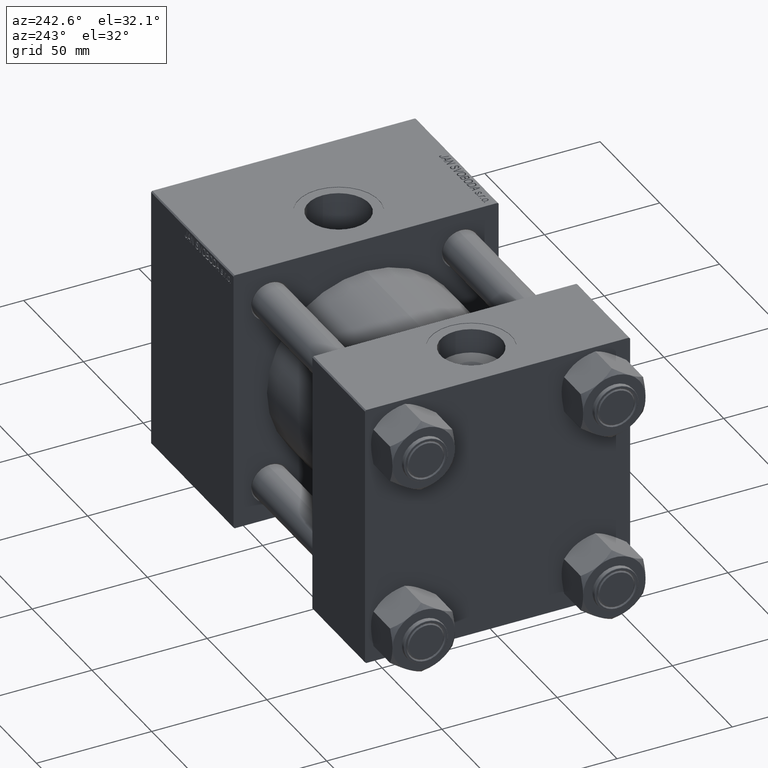
[diagram: clean part render]
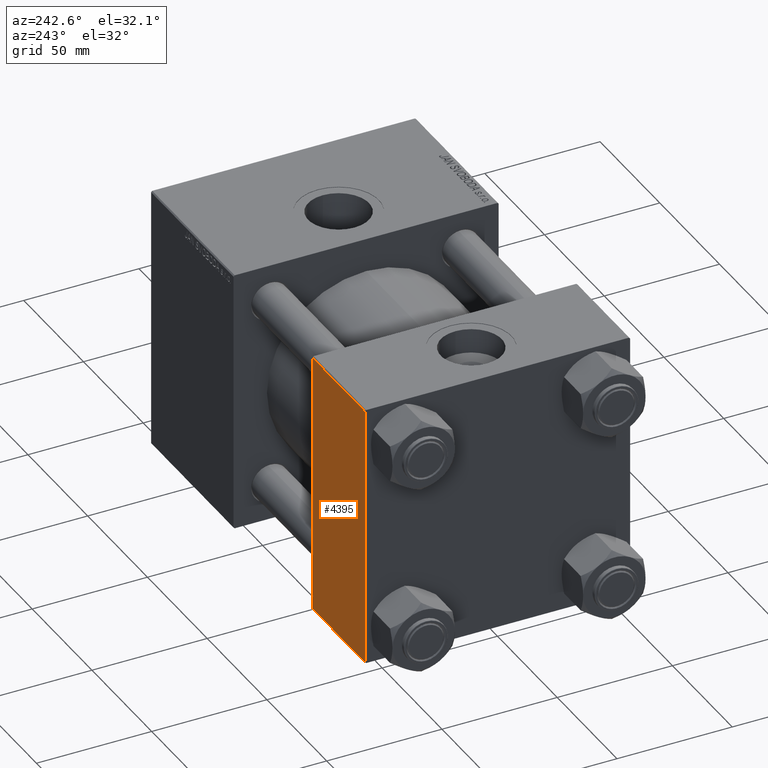
[diagram: same view with one face highlighted and labeled with its STEP entity id]
A machine part, auxiliary view. The second image highlights one B-rep face of the part: STEP entity #4395.
In plain terms, the highlighted planar face has unit normal (0, 1, 0).
Its self-contained STEP definition (entity closure, byte-faithful):
#1265 = VERTEX_POINT ( 'NONE', #42312 ) ;
#2132 = EDGE_CURVE ( 'NONE', #17488, #13222, #47960, .T. ) ;
#3208 = VERTEX_POINT ( 'NONE', #23993 ) ;
#4395 = ADVANCED_FACE ( 'NONE', ( #42175 ), #34241, .T. ) ;
#6760 = LINE ( 'NONE', #41585, #27524 ) ;
#7146 = LINE ( 'NONE', #11247, #35573 ) ;
#10234 = ORIENTED_EDGE ( 'NONE', *, *, #2132, .T. ) ;
#11247 = CARTESIAN_POINT ( 'NONE',  ( 44.00000000000000000, 57.49999999999999289, 57.50000000000000711 ) ) ;
#12166 = DIRECTION ( 'NONE',  ( -0.000000000000000000, 1.000000000000000000, 0.000000000000000000 ) ) ;
#13222 = VERTEX_POINT ( 'NONE', #15253 ) ;
#15253 = CARTESIAN_POINT ( 'NONE',  ( 0.000000000000000000, 57.49999999999999289, -57.00000000000000711 ) ) ;
#17488 = VERTEX_POINT ( 'NONE', #47164 ) ;
#19598 = EDGE_CURVE ( 'NONE', #1265, #3208, #43140, .T. ) ;
#23689 = CARTESIAN_POINT ( 'NONE',  ( 44.00000000000000000, 57.49999999999999289, 57.00000000000003553 ) ) ;
#23993 = CARTESIAN_POINT ( 'NONE',  ( 44.00000000000000000, 57.49999999999999289, 57.00000000000003553 ) ) ;
#25011 = EDGE_LOOP ( 'NONE', ( #30403, #10234, #31666, #45266 ) ) ;
#25818 = EDGE_CURVE ( 'NONE', #1265, #13222, #6760, .T. ) ;
#26301 = DIRECTION ( 'NONE',  ( 0.000000000000000000, -0.000000000000000000, 1.000000000000000000 ) ) ;
#27524 = VECTOR ( 'NONE', #45683, 1000.000000000000000 ) ;
#28137 = EDGE_CURVE ( 'NONE', #3208, #17488, #7146, .T. ) ;
#29888 = VECTOR ( 'NONE', #39540, 1000.000000000000000 ) ;
#30403 = ORIENTED_EDGE ( 'NONE', *, *, #28137, .T. ) ;
#31666 = ORIENTED_EDGE ( 'NONE', *, *, #25818, .F. ) ;
#32577 = CARTESIAN_POINT ( 'NONE',  ( 44.00000000000000000, 57.49999999999999289, -57.00000000000000711 ) ) ;
#32792 = AXIS2_PLACEMENT_3D ( 'NONE', #34494, #12166, #26301 ) ;
#34241 = PLANE ( 'NONE',  #32792 ) ;
#34494 = CARTESIAN_POINT ( 'NONE',  ( 44.00000000000000000, 57.49999999999999289, 57.50000000000000711 ) ) ;
#35573 = VECTOR ( 'NONE', #37381, 1000.000000000000000 ) ;
#37381 = DIRECTION ( 'NONE',  ( 0.000000000000000000, 0.000000000000000000, -1.000000000000000000 ) ) ;
#39540 = DIRECTION ( 'NONE',  ( 1.000000000000000000, 0.000000000000000000, 0.000000000000000000 ) ) ;
#41585 = CARTESIAN_POINT ( 'NONE',  ( 0.000000000000000000, 57.49999999999999289, 57.50000000000000711 ) ) ;
#42175 = FACE_OUTER_BOUND ( 'NONE', #25011, .T. ) ;
#42312 = CARTESIAN_POINT ( 'NONE',  ( 0.000000000000000000, 57.49999999999999289, 57.00000000000003553 ) ) ;
#43140 = LINE ( 'NONE', #23689, #29888 ) ;
#45266 = ORIENTED_EDGE ( 'NONE', *, *, #19598, .T. ) ;
#45683 = DIRECTION ( 'NONE',  ( 0.000000000000000000, 0.000000000000000000, -1.000000000000000000 ) ) ;
#45810 = VECTOR ( 'NONE', #47455, 1000.000000000000000 ) ;
#47164 = CARTESIAN_POINT ( 'NONE',  ( 44.00000000000000000, 57.49999999999999289, -57.00000000000000711 ) ) ;
#47455 = DIRECTION ( 'NONE',  ( -1.000000000000000000, 0.000000000000000000, 0.000000000000000000 ) ) ;
#47960 = LINE ( 'NONE', #32577, #45810 ) ;